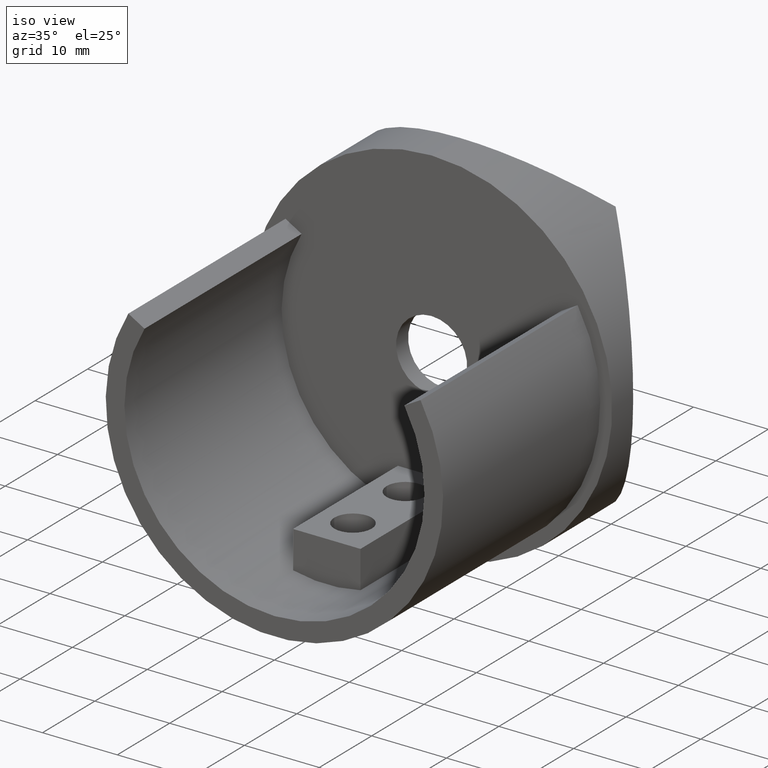
[diagram: clean part render]
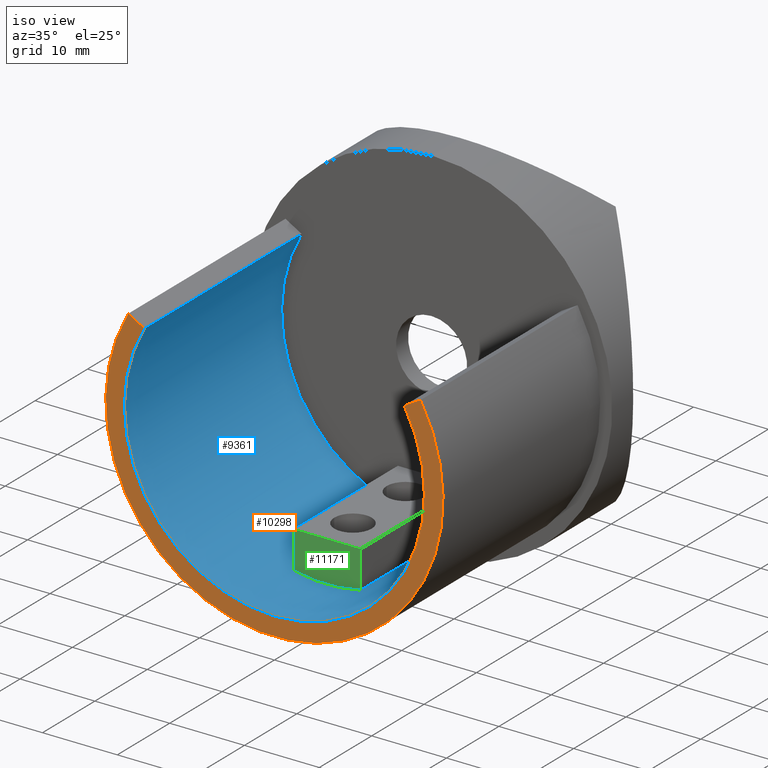
[diagram: same view with three faces highlighted in distinct colors, each labeled with its STEP entity id]
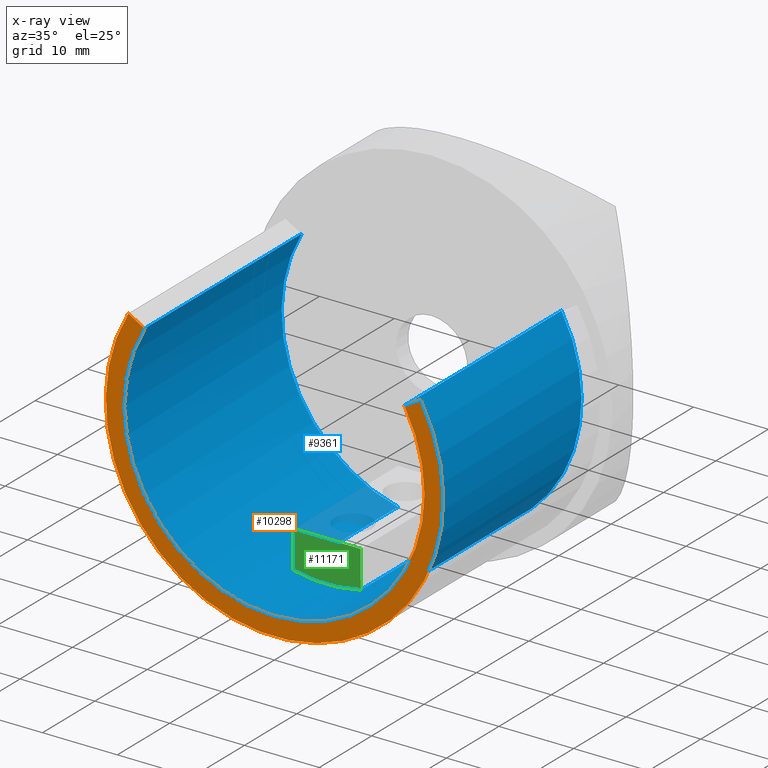
[diagram: x-ray of the same camera — body ghosted, the three highlighted faces saturated]
A machine part, iso view with three faces highlighted in distinct colors.
The next image is the same camera in x-ray (body ghosted, the three faces saturated) — at least one of them is partly hidden behind the body in this view.
Their STEP definitions:

[orange] entity #10298 — the highlighted planar face has unit normal (0, -1, 0).
#411 = DIRECTION ( 'NONE',  ( -0.8660254037844378200, -0.0000000000000000000, 0.5000000000000014400 ) ) ;
#865 = CIRCLE ( 'NONE', #2194, 22.55000000000001500 ) ;
#1058 = EDGE_LOOP ( 'NONE', ( #13201, #11536, #8525, #8053 ) ) ;
#1445 = LINE ( 'NONE', #7089, #12711 ) ;
#1537 = DIRECTION ( 'NONE',  ( 0.0000000000000000000, -1.000000000000000000, 0.0000000000000000000 ) ) ;
#2092 = EDGE_CURVE ( 'NONE', #13648, #6011, #865, .T. ) ;
#2194 = AXIS2_PLACEMENT_3D ( 'NONE', #7735, #4366, #5410 ) ;
#2390 = CARTESIAN_POINT ( 'NONE',  ( 19.52887246546949400, -30.00000000000000000, 11.27500067527394900 ) ) ;
#2472 = EDGE_CURVE ( 'NONE', #11814, #5505, #13920, .T. ) ;
#2540 = CARTESIAN_POINT ( 'NONE',  ( 0.0000000000000000000, -30.00000000000000000, 0.0000000000000000000 ) ) ;
#3207 = AXIS2_PLACEMENT_3D ( 'NONE', #7472, #11874, #11971 ) ;
#3376 = CARTESIAN_POINT ( 'NONE',  ( 17.36380895600840200, -30.00000000000000000, 10.02500067527394400 ) ) ;
#4214 = CARTESIAN_POINT ( 'NONE',  ( -17.36380895600840200, -30.00000000000000000, 10.02500067527394200 ) ) ;
#4316 = EDGE_CURVE ( 'NONE', #5505, #13648, #1445, .T. ) ;
#4366 = DIRECTION ( 'NONE',  ( 0.0000000000000000000, -1.000000000000000000, 0.0000000000000000000 ) ) ;
#4494 = LINE ( 'NONE', #11048, #9108 ) ;
#5410 = DIRECTION ( 'NONE',  ( 0.0000000000000000000, 0.0000000000000000000, -1.000000000000000000 ) ) ;
#5505 = VERTEX_POINT ( 'NONE', #4214 ) ;
#5780 = EDGE_CURVE ( 'NONE', #6011, #11814, #4494, .T. ) ;
#6011 = VERTEX_POINT ( 'NONE', #2390 ) ;
#7089 = CARTESIAN_POINT ( 'NONE',  ( -19.52887246546949400, -30.00000000000000000, 11.27500067527394600 ) ) ;
#7439 = AXIS2_PLACEMENT_3D ( 'NONE', #2540, #1537, #8020 ) ;
#7472 = CARTESIAN_POINT ( 'NONE',  ( 0.0000000000000000000, -30.00000000000000000, 0.0000000000000000000 ) ) ;
#7735 = CARTESIAN_POINT ( 'NONE',  ( 0.0000000000000000000, -30.00000000000000000, 0.0000000000000000000 ) ) ;
#8020 = DIRECTION ( 'NONE',  ( 0.0000000000000000000, -0.0000000000000000000, -1.000000000000000000 ) ) ;
#8053 = ORIENTED_EDGE ( 'NONE', *, *, #5780, .T. ) ;
#8525 = ORIENTED_EDGE ( 'NONE', *, *, #2092, .T. ) ;
#9108 = VECTOR ( 'NONE', #11090, 1000.000000000000000 ) ;
#9551 = FACE_OUTER_BOUND ( 'NONE', #1058, .T. ) ;
#10298 = ADVANCED_FACE ( 'NONE', ( #9551 ), #10331, .T. ) ;
#10331 = PLANE ( 'NONE',  #7439 ) ;
#11048 = CARTESIAN_POINT ( 'NONE',  ( 17.36380895600840200, -30.00000000000000000, 10.02500067527394400 ) ) ;
#11090 = DIRECTION ( 'NONE',  ( -0.8660254037844381500, -0.0000000000000000000, -0.5000000000000008900 ) ) ;
#11536 = ORIENTED_EDGE ( 'NONE', *, *, #4316, .T. ) ;
#11814 = VERTEX_POINT ( 'NONE', #3376 ) ;
#11860 = CARTESIAN_POINT ( 'NONE',  ( -19.52887246546949400, -30.00000000000000000, 11.27500067527394600 ) ) ;
#11874 = DIRECTION ( 'NONE',  ( -0.0000000000000000000, 1.000000000000000000, -0.0000000000000000000 ) ) ;
#11971 = DIRECTION ( 'NONE',  ( 0.0000000000000000000, 0.0000000000000000000, -1.000000000000000000 ) ) ;
#12711 = VECTOR ( 'NONE', #411, 1000.000000000000100 ) ;
#13201 = ORIENTED_EDGE ( 'NONE', *, *, #2472, .T. ) ;
#13648 = VERTEX_POINT ( 'NONE', #11860 ) ;
#13920 = CIRCLE ( 'NONE', #3207, 20.05000000000001500 ) ;

[blue] entity #9361 — the highlighted cylindrical surface (partial cylindrical patch) has radius 20.05 mm, axis along (-0, 1, -0).
#531 = DIRECTION ( 'NONE',  ( -0.0000000000000000000, 1.000000000000000000, -0.0000000000000000000 ) ) ;
#798 = CIRCLE ( 'NONE', #12221, 20.05000000000001500 ) ;
#930 = CARTESIAN_POINT ( 'NONE',  ( 17.36380895600840200, -0.0000000000000000000, 10.02500067527394400 ) ) ;
#1004 = VERTEX_POINT ( 'NONE', #930 ) ;
#1358 = CARTESIAN_POINT ( 'NONE',  ( 4.500000000000000000, -20.00000000000000000, -19.53848765897710700 ) ) ;
#1854 = CARTESIAN_POINT ( 'NONE',  ( 0.0000000000000000000, 0.0000000000000000000, 0.0000000000000000000 ) ) ;
#1874 = DIRECTION ( 'NONE',  ( -0.0000000000000000000, 1.000000000000000000, -0.0000000000000000000 ) ) ;
#1881 = DIRECTION ( 'NONE',  ( 3.552713678800500900E-015, 0.0000000000000000000, 1.000000000000000000 ) ) ;
#1938 = CARTESIAN_POINT ( 'NONE',  ( 4.500000000000000000, -30.00000000000000000, -19.53848765897710700 ) ) ;
#2090 = CARTESIAN_POINT ( 'NONE',  ( -4.500000000000000000, 0.0000000000000000000, -19.53848765897710700 ) ) ;
#2218 = CARTESIAN_POINT ( 'NONE',  ( -17.36380895600840200, -30.00000000000000000, 10.02500067527394200 ) ) ;
#2429 = EDGE_CURVE ( 'NONE', #1004, #8675, #6076, .T. ) ;
#2472 = EDGE_CURVE ( 'NONE', #11814, #5505, #13920, .T. ) ;
#2551 = VERTEX_POINT ( 'NONE', #2090 ) ;
#2555 = VECTOR ( 'NONE', #1874, 1000.000000000000000 ) ;
#2581 = DIRECTION ( 'NONE',  ( 0.0000000000000000000, 0.0000000000000000000, -1.000000000000000000 ) ) ;
#2665 = AXIS2_PLACEMENT_3D ( 'NONE', #1854, #13742, #7196 ) ;
#3023 = CARTESIAN_POINT ( 'NONE',  ( 17.36380895600840200, -30.00000000000000000, 10.02500067527394400 ) ) ;
#3207 = AXIS2_PLACEMENT_3D ( 'NONE', #7472, #11874, #11971 ) ;
#3237 = LINE ( 'NONE', #3023, #2555 ) ;
#3376 = CARTESIAN_POINT ( 'NONE',  ( 17.36380895600840200, -30.00000000000000000, 10.02500067527394400 ) ) ;
#3661 = VERTEX_POINT ( 'NONE', #6380 ) ;
#3745 = EDGE_CURVE ( 'NONE', #5505, #4689, #7244, .T. ) ;
#3801 = VECTOR ( 'NONE', #13910, 1000.000000000000000 ) ;
#4214 = CARTESIAN_POINT ( 'NONE',  ( -17.36380895600840200, -30.00000000000000000, 10.02500067527394200 ) ) ;
#4446 = DIRECTION ( 'NONE',  ( 0.0000000000000000000, -1.000000000000000000, 0.0000000000000000000 ) ) ;
#4535 = EDGE_LOOP ( 'NONE', ( #9685, #10468, #10942, #12647, #6130, #8330, #8073, #7614 ) ) ;
#4689 = VERTEX_POINT ( 'NONE', #6119 ) ;
#5129 = CIRCLE ( 'NONE', #5539, 20.05000000000001500 ) ;
#5134 = CARTESIAN_POINT ( 'NONE',  ( 0.0000000000000000000, -20.00000000000000000, 0.0000000000000000000 ) ) ;
#5432 = DIRECTION ( 'NONE',  ( -0.0000000000000000000, 1.000000000000000000, -0.0000000000000000000 ) ) ;
#5505 = VERTEX_POINT ( 'NONE', #4214 ) ;
#5539 = AXIS2_PLACEMENT_3D ( 'NONE', #5134, #11576, #1881 ) ;
#6076 = CIRCLE ( 'NONE', #2665, 20.05000000000001500 ) ;
#6119 = CARTESIAN_POINT ( 'NONE',  ( -17.36380895600840200, 0.0000000000000000000, 10.02500067527394400 ) ) ;
#6130 = ORIENTED_EDGE ( 'NONE', *, *, #9975, .T. ) ;
#6380 = CARTESIAN_POINT ( 'NONE',  ( -4.500000000000000000, -20.00000000000000000, -19.53848765897710700 ) ) ;
#6518 = EDGE_CURVE ( 'NONE', #9832, #8675, #13013, .T. ) ;
#6943 = LINE ( 'NONE', #11984, #12758 ) ;
#7196 = DIRECTION ( 'NONE',  ( 0.0000000000000000000, 0.0000000000000000000, -1.000000000000000000 ) ) ;
#7244 = LINE ( 'NONE', #2218, #13220 ) ;
#7472 = CARTESIAN_POINT ( 'NONE',  ( 0.0000000000000000000, -30.00000000000000000, 0.0000000000000000000 ) ) ;
#7614 = ORIENTED_EDGE ( 'NONE', *, *, #9376, .F. ) ;
#8073 = ORIENTED_EDGE ( 'NONE', *, *, #6518, .F. ) ;
#8207 = CARTESIAN_POINT ( 'NONE',  ( 0.0000000000000000000, 0.0000000000000000000, 0.0000000000000000000 ) ) ;
#8330 = ORIENTED_EDGE ( 'NONE', *, *, #2429, .T. ) ;
#8528 = FACE_OUTER_BOUND ( 'NONE', #4535, .T. ) ;
#8675 = VERTEX_POINT ( 'NONE', #13993 ) ;
#9265 = DIRECTION ( 'NONE',  ( -0.0000000000000000000, 1.000000000000000000, -0.0000000000000000000 ) ) ;
#9361 = ADVANCED_FACE ( 'NONE', ( #8528 ), #10759, .F. ) ;
#9376 = EDGE_CURVE ( 'NONE', #3661, #9832, #5129, .T. ) ;
#9685 = ORIENTED_EDGE ( 'NONE', *, *, #12875, .F. ) ;
#9832 = VERTEX_POINT ( 'NONE', #1358 ) ;
#9975 = EDGE_CURVE ( 'NONE', #11814, #1004, #3237, .T. ) ;
#10468 = ORIENTED_EDGE ( 'NONE', *, *, #12244, .T. ) ;
#10759 = CYLINDRICAL_SURFACE ( 'NONE', #11915, 20.05000000000001500 ) ;
#10942 = ORIENTED_EDGE ( 'NONE', *, *, #3745, .F. ) ;
#11395 = CARTESIAN_POINT ( 'NONE',  ( 0.0000000000000000000, -30.00000000000000000, 0.0000000000000000000 ) ) ;
#11576 = DIRECTION ( 'NONE',  ( -0.0000000000000000000, -1.000000000000000000, -0.0000000000000000000 ) ) ;
#11814 = VERTEX_POINT ( 'NONE', #3376 ) ;
#11874 = DIRECTION ( 'NONE',  ( -0.0000000000000000000, 1.000000000000000000, -0.0000000000000000000 ) ) ;
#11915 = AXIS2_PLACEMENT_3D ( 'NONE', #11395, #531, #13906 ) ;
#11971 = DIRECTION ( 'NONE',  ( 0.0000000000000000000, 0.0000000000000000000, -1.000000000000000000 ) ) ;
#11984 = CARTESIAN_POINT ( 'NONE',  ( -4.500000000000000000, -30.00000000000000000, -19.53848765897710700 ) ) ;
#12221 = AXIS2_PLACEMENT_3D ( 'NONE', #8207, #9265, #2581 ) ;
#12244 = EDGE_CURVE ( 'NONE', #2551, #4689, #798, .T. ) ;
#12647 = ORIENTED_EDGE ( 'NONE', *, *, #2472, .F. ) ;
#12758 = VECTOR ( 'NONE', #4446, 1000.000000000000000 ) ;
#12875 = EDGE_CURVE ( 'NONE', #2551, #3661, #6943, .T. ) ;
#13013 = LINE ( 'NONE', #1938, #3801 ) ;
#13220 = VECTOR ( 'NONE', #5432, 1000.000000000000000 ) ;
#13742 = DIRECTION ( 'NONE',  ( -0.0000000000000000000, 1.000000000000000000, -0.0000000000000000000 ) ) ;
#13906 = DIRECTION ( 'NONE',  ( 0.0000000000000000000, 0.0000000000000000000, 1.000000000000000000 ) ) ;
#13910 = DIRECTION ( 'NONE',  ( -0.0000000000000000000, 1.000000000000000000, -0.0000000000000000000 ) ) ;
#13920 = CIRCLE ( 'NONE', #3207, 20.05000000000001500 ) ;
#13993 = CARTESIAN_POINT ( 'NONE',  ( 4.500000000000000000, 0.0000000000000000000, -19.53848765897710700 ) ) ;

[green] entity #11171 — the highlighted planar face has unit normal (0, 1, 0).
#254 = CARTESIAN_POINT ( 'NONE',  ( 4.500000000000000000, -20.00000000000000000, -14.55000000000001300 ) ) ;
#644 = FACE_OUTER_BOUND ( 'NONE', #8373, .T. ) ;
#1358 = CARTESIAN_POINT ( 'NONE',  ( 4.500000000000000000, -20.00000000000000000, -19.53848765897710700 ) ) ;
#1610 = AXIS2_PLACEMENT_3D ( 'NONE', #9288, #10439, #1661 ) ;
#1661 = DIRECTION ( 'NONE',  ( 0.0000000000000000000, -0.0000000000000000000, 1.000000000000000000 ) ) ;
#1881 = DIRECTION ( 'NONE',  ( 3.552713678800500900E-015, 0.0000000000000000000, 1.000000000000000000 ) ) ;
#2510 = DIRECTION ( 'NONE',  ( -0.0000000000000000000, -0.0000000000000000000, 1.000000000000000000 ) ) ;
#3172 = CARTESIAN_POINT ( 'NONE',  ( 4.500000000000000000, -20.00000000000000000, -14.55000000000001300 ) ) ;
#3235 = ORIENTED_EDGE ( 'NONE', *, *, #9201, .T. ) ;
#3509 = ORIENTED_EDGE ( 'NONE', *, *, #9376, .T. ) ;
#3636 = ORIENTED_EDGE ( 'NONE', *, *, #9792, .T. ) ;
#3661 = VERTEX_POINT ( 'NONE', #6380 ) ;
#4267 = LINE ( 'NONE', #254, #9564 ) ;
#5129 = CIRCLE ( 'NONE', #5539, 20.05000000000001500 ) ;
#5134 = CARTESIAN_POINT ( 'NONE',  ( 0.0000000000000000000, -20.00000000000000000, 0.0000000000000000000 ) ) ;
#5539 = AXIS2_PLACEMENT_3D ( 'NONE', #5134, #11576, #1881 ) ;
#5986 = LINE ( 'NONE', #6795, #10421 ) ;
#6380 = CARTESIAN_POINT ( 'NONE',  ( -4.500000000000000000, -20.00000000000000000, -19.53848765897710700 ) ) ;
#6795 = CARTESIAN_POINT ( 'NONE',  ( -4.500000000000000000, -20.00000000000000000, -14.55000000000001300 ) ) ;
#8373 = EDGE_LOOP ( 'NONE', ( #8508, #3509, #3235, #3636 ) ) ;
#8506 = LINE ( 'NONE', #12204, #9697 ) ;
#8508 = ORIENTED_EDGE ( 'NONE', *, *, #11767, .T. ) ;
#9143 = DIRECTION ( 'NONE',  ( -1.000000000000000000, -0.0000000000000000000, -0.0000000000000000000 ) ) ;
#9201 = EDGE_CURVE ( 'NONE', #9832, #9574, #4267, .T. ) ;
#9243 = PLANE ( 'NONE',  #1610 ) ;
#9288 = CARTESIAN_POINT ( 'NONE',  ( 0.0000000000000000000, -20.00000000000000000, 0.0000000000000000000 ) ) ;
#9376 = EDGE_CURVE ( 'NONE', #3661, #9832, #5129, .T. ) ;
#9564 = VECTOR ( 'NONE', #2510, 1000.000000000000000 ) ;
#9574 = VERTEX_POINT ( 'NONE', #3172 ) ;
#9600 = CARTESIAN_POINT ( 'NONE',  ( -4.500000000000000000, -20.00000000000000000, -14.55000000000001300 ) ) ;
#9697 = VECTOR ( 'NONE', #13287, 1000.000000000000000 ) ;
#9792 = EDGE_CURVE ( 'NONE', #9574, #12732, #5986, .T. ) ;
#9832 = VERTEX_POINT ( 'NONE', #1358 ) ;
#10421 = VECTOR ( 'NONE', #9143, 1000.000000000000000 ) ;
#10439 = DIRECTION ( 'NONE',  ( 0.0000000000000000000, 1.000000000000000000, 0.0000000000000000000 ) ) ;
#11171 = ADVANCED_FACE ( 'NONE', ( #644 ), #9243, .F. ) ;
#11576 = DIRECTION ( 'NONE',  ( -0.0000000000000000000, -1.000000000000000000, -0.0000000000000000000 ) ) ;
#11767 = EDGE_CURVE ( 'NONE', #12732, #3661, #8506, .T. ) ;
#12204 = CARTESIAN_POINT ( 'NONE',  ( -4.500000000000000000, -20.00000000000000000, -21.05000000000001800 ) ) ;
#12732 = VERTEX_POINT ( 'NONE', #9600 ) ;
#13287 = DIRECTION ( 'NONE',  ( -0.0000000000000000000, -0.0000000000000000000, -1.000000000000000000 ) ) ;